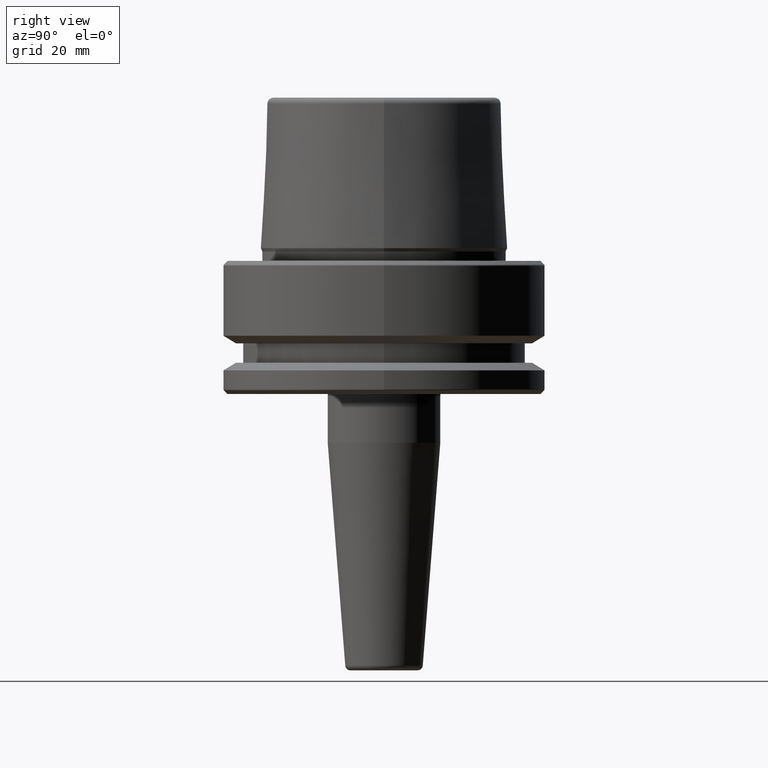
[diagram: clean part render]
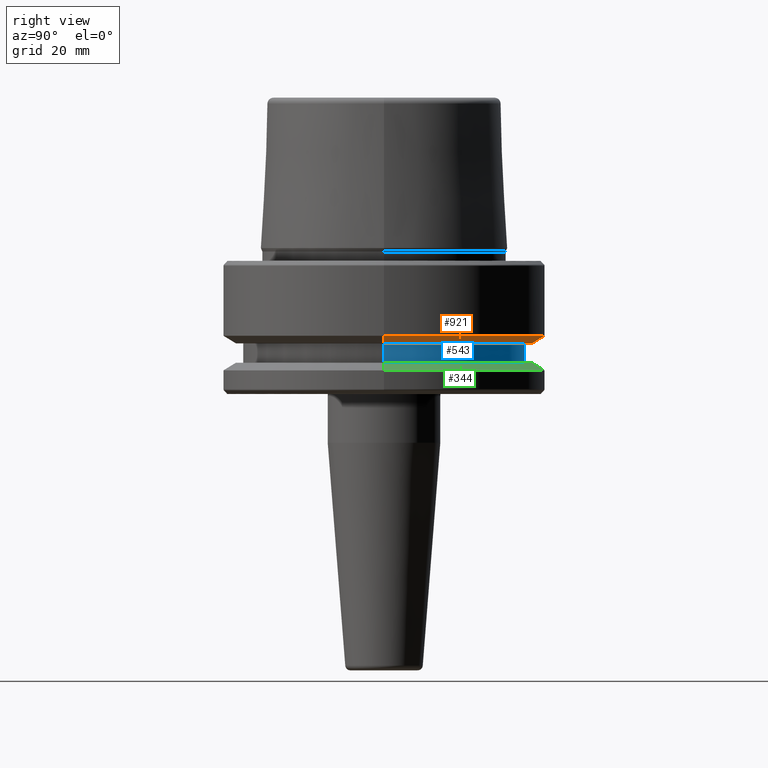
[diagram: same view with three faces highlighted in distinct colors, each labeled with its STEP entity id]
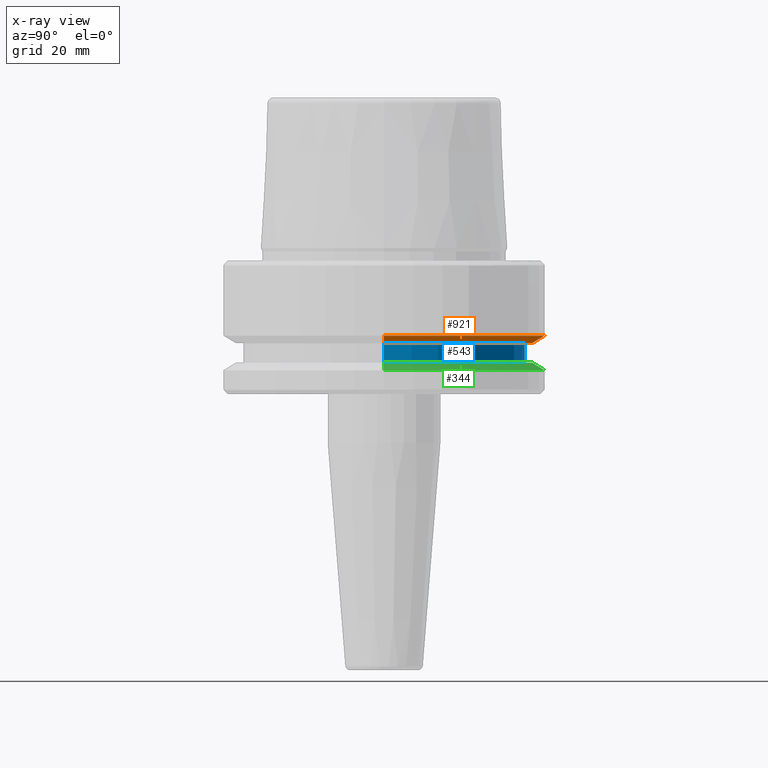
[diagram: x-ray of the same camera — body ghosted, the three highlighted faces saturated]
A machine part, right view with three faces highlighted in distinct colors.
The next image is the same camera in x-ray (body ghosted, the three faces saturated) — at least one of them is partly hidden behind the body in this view.
Their STEP definitions:

[orange] entity #921 — the highlighted conical surface has half-angle 60 deg.
#13 = AXIS2_PLACEMENT_3D ( 'NONE', #170, #843, #280 ) ;
#19 = CARTESIAN_POINT ( 'NONE',  ( 28.94089653438085100, 0.0000000000000000000, -16.10000000000001600 ) ) ;
#25 = CIRCLE ( 'NONE', #13, 28.94089653438085100 ) ;
#59 = CIRCLE ( 'NONE', #166, 31.50000000000000000 ) ;
#78 = CARTESIAN_POINT ( 'NONE',  ( 0.0000000000000000000, 0.0000000000000000000, -14.62250092524070100 ) ) ;
#96 = VERTEX_POINT ( 'NONE', #440 ) ;
#135 = EDGE_CURVE ( 'NONE', #96, #768, #1163, .T. ) ;
#166 = AXIS2_PLACEMENT_3D ( 'NONE', #78, #607, #642 ) ;
#170 = CARTESIAN_POINT ( 'NONE',  ( 0.0000000000000000000, 0.0000000000000000000, -16.10000000000001600 ) ) ;
#195 = CARTESIAN_POINT ( 'NONE',  ( 31.50000000000000000, 0.0000000000000000000, -14.62250092524070100 ) ) ;
#205 = VERTEX_POINT ( 'NONE', #195 ) ;
#229 = LINE ( 'NONE', #19, #1227 ) ;
#232 = DIRECTION ( 'NONE',  ( -0.8660254037844389300, 1.060575238724907300E-016, 0.4999999999999995000 ) ) ;
#280 = DIRECTION ( 'NONE',  ( 1.000000000000000000, 0.0000000000000000000, 0.0000000000000000000 ) ) ;
#282 = EDGE_CURVE ( 'NONE', #205, #768, #59, .T. ) ;
#382 = ORIENTED_EDGE ( 'NONE', *, *, #1152, .T. ) ;
#395 = CARTESIAN_POINT ( 'NONE',  ( -28.94089653438085100, 3.544237630528423800E-015, -16.10000000000001600 ) ) ;
#410 = ORIENTED_EDGE ( 'NONE', *, *, #135, .T. ) ;
#440 = CARTESIAN_POINT ( 'NONE',  ( -28.94089653438085100, 3.700937523921292900E-015, -16.10000000000001600 ) ) ;
#592 = DIRECTION ( 'NONE',  ( 0.8660254037844389300, 0.0000000000000000000, 0.4999999999999995000 ) ) ;
#607 = DIRECTION ( 'NONE',  ( -0.0000000000000000000, -0.0000000000000000000, 1.000000000000000000 ) ) ;
#642 = DIRECTION ( 'NONE',  ( 1.000000000000000000, 0.0000000000000000000, 0.0000000000000000000 ) ) ;
#661 = VERTEX_POINT ( 'NONE', #963 ) ;
#739 = ORIENTED_EDGE ( 'NONE', *, *, #757, .F. ) ;
#757 = EDGE_CURVE ( 'NONE', #661, #205, #229, .T. ) ;
#768 = VERTEX_POINT ( 'NONE', #982 ) ;
#793 = ORIENTED_EDGE ( 'NONE', *, *, #282, .F. ) ;
#803 = CARTESIAN_POINT ( 'NONE',  ( 0.0000000000000000000, 0.0000000000000000000, -16.10000000000001600 ) ) ;
#843 = DIRECTION ( 'NONE',  ( -0.0000000000000000000, -0.0000000000000000000, 1.000000000000000000 ) ) ;
#921 = ADVANCED_FACE ( 'NONE', ( #1106 ), #1052, .T. ) ;
#963 = CARTESIAN_POINT ( 'NONE',  ( 28.94089653438085100, 0.0000000000000000000, -16.10000000000001600 ) ) ;
#982 = CARTESIAN_POINT ( 'NONE',  ( -31.50000000000000000, 3.857637417314162700E-015, -14.62250092524070100 ) ) ;
#1006 = DIRECTION ( 'NONE',  ( 1.000000000000000000, 0.0000000000000000000, 0.0000000000000000000 ) ) ;
#1052 = CONICAL_SURFACE ( 'NONE', #1095, 28.94089653438085100, 1.047197551196598300 ) ;
#1095 = AXIS2_PLACEMENT_3D ( 'NONE', #803, #1099, #1006 ) ;
#1099 = DIRECTION ( 'NONE',  ( -0.0000000000000000000, -0.0000000000000000000, 1.000000000000000000 ) ) ;
#1100 = EDGE_LOOP ( 'NONE', ( #382, #410, #793, #739 ) ) ;
#1106 = FACE_OUTER_BOUND ( 'NONE', #1100, .T. ) ;
#1128 = VECTOR ( 'NONE', #232, 1000.000000000000000 ) ;
#1152 = EDGE_CURVE ( 'NONE', #661, #96, #25, .T. ) ;
#1163 = LINE ( 'NONE', #395, #1128 ) ;
#1227 = VECTOR ( 'NONE', #592, 1000.000000000000000 ) ;

[blue] entity #543 — the highlighted cylindrical surface (partial cylindrical patch) has radius 27.5 mm, axis along (-0, -0, 1).
#9 = EDGE_CURVE ( 'NONE', #277, #1186, #547, .T. ) ;
#14 = ORIENTED_EDGE ( 'NONE', *, *, #9, .F. ) ;
#53 = DIRECTION ( 'NONE',  ( 1.000000000000000000, 0.0000000000000000000, 0.0000000000000000000 ) ) ;
#84 = AXIS2_PLACEMENT_3D ( 'NONE', #524, #1103, #1165 ) ;
#97 = AXIS2_PLACEMENT_3D ( 'NONE', #1202, #625, #53 ) ;
#123 = CYLINDRICAL_SURFACE ( 'NONE', #84, 27.49999999999999600 ) ;
#188 = CARTESIAN_POINT ( 'NONE',  ( 0.0000000000000000000, 0.0000000000000000000, -19.90000000000001600 ) ) ;
#190 = CARTESIAN_POINT ( 'NONE',  ( -27.49999999999999600, 3.367778697655220900E-015, 78.96908074195309300 ) ) ;
#192 = VERTEX_POINT ( 'NONE', #210 ) ;
#210 = CARTESIAN_POINT ( 'NONE',  ( -27.49999999999999600, 3.367778697655220900E-015, -19.90000000000001600 ) ) ;
#256 = CARTESIAN_POINT ( 'NONE',  ( 27.49999999999999600, 0.0000000000000000000, -19.90000000000001600 ) ) ;
#277 = VERTEX_POINT ( 'NONE', #256 ) ;
#292 = DIRECTION ( 'NONE',  ( -0.0000000000000000000, -0.0000000000000000000, 1.000000000000000000 ) ) ;
#293 = DIRECTION ( 'NONE',  ( 1.000000000000000000, 0.0000000000000000000, 0.0000000000000000000 ) ) ;
#316 = CIRCLE ( 'NONE', #97, 27.49999999999999600 ) ;
#414 = VECTOR ( 'NONE', #999, 1000.000000000000000 ) ;
#488 = CARTESIAN_POINT ( 'NONE',  ( -27.49999999999999600, 3.367778697655220900E-015, -16.10000000000001600 ) ) ;
#524 = CARTESIAN_POINT ( 'NONE',  ( 0.0000000000000000000, 0.0000000000000000000, 78.96908074195309300 ) ) ;
#543 = ADVANCED_FACE ( 'NONE', ( #796 ), #123, .T. ) ;
#547 = LINE ( 'NONE', #1023, #414 ) ;
#563 = CARTESIAN_POINT ( 'NONE',  ( 27.49999999999999600, 0.0000000000000000000, -16.10000000000001600 ) ) ;
#625 = DIRECTION ( 'NONE',  ( -0.0000000000000000000, -0.0000000000000000000, 1.000000000000000000 ) ) ;
#659 = AXIS2_PLACEMENT_3D ( 'NONE', #188, #859, #293 ) ;
#674 = EDGE_CURVE ( 'NONE', #192, #704, #1012, .T. ) ;
#704 = VERTEX_POINT ( 'NONE', #488 ) ;
#796 = FACE_OUTER_BOUND ( 'NONE', #1205, .T. ) ;
#809 = ORIENTED_EDGE ( 'NONE', *, *, #949, .F. ) ;
#835 = ORIENTED_EDGE ( 'NONE', *, *, #674, .T. ) ;
#859 = DIRECTION ( 'NONE',  ( -0.0000000000000000000, -0.0000000000000000000, 1.000000000000000000 ) ) ;
#926 = CIRCLE ( 'NONE', #659, 27.49999999999999600 ) ;
#949 = EDGE_CURVE ( 'NONE', #1186, #704, #316, .T. ) ;
#999 = DIRECTION ( 'NONE',  ( -0.0000000000000000000, -0.0000000000000000000, 1.000000000000000000 ) ) ;
#1012 = LINE ( 'NONE', #190, #1234 ) ;
#1023 = CARTESIAN_POINT ( 'NONE',  ( 27.49999999999999600, 0.0000000000000000000, 78.96908074195309300 ) ) ;
#1103 = DIRECTION ( 'NONE',  ( -0.0000000000000000000, -0.0000000000000000000, 1.000000000000000000 ) ) ;
#1113 = ORIENTED_EDGE ( 'NONE', *, *, #1240, .T. ) ;
#1165 = DIRECTION ( 'NONE',  ( 1.000000000000000000, 0.0000000000000000000, 0.0000000000000000000 ) ) ;
#1186 = VERTEX_POINT ( 'NONE', #563 ) ;
#1202 = CARTESIAN_POINT ( 'NONE',  ( 0.0000000000000000000, 0.0000000000000000000, -16.10000000000001600 ) ) ;
#1205 = EDGE_LOOP ( 'NONE', ( #1113, #835, #809, #14 ) ) ;
#1234 = VECTOR ( 'NONE', #292, 1000.000000000000000 ) ;
#1240 = EDGE_CURVE ( 'NONE', #277, #192, #926, .T. ) ;

[green] entity #344 — the highlighted conical surface has half-angle 60 deg.
#18 = CARTESIAN_POINT ( 'NONE',  ( 0.0000000000000000000, 0.0000000000000000000, -21.37749907475931700 ) ) ;
#101 = VERTEX_POINT ( 'NONE', #1054 ) ;
#105 = DIRECTION ( 'NONE',  ( 0.0000000000000000000, 0.0000000000000000000, -1.000000000000000000 ) ) ;
#107 = VECTOR ( 'NONE', #1189, 1000.000000000000100 ) ;
#152 = VECTOR ( 'NONE', #880, 1000.000000000000100 ) ;
#251 = VERTEX_POINT ( 'NONE', #1119 ) ;
#295 = EDGE_CURVE ( 'NONE', #251, #498, #321, .T. ) ;
#299 = AXIS2_PLACEMENT_3D ( 'NONE', #533, #1208, #630 ) ;
#311 = AXIS2_PLACEMENT_3D ( 'NONE', #18, #322, #881 ) ;
#321 = CIRCLE ( 'NONE', #311, 31.50000000000000000 ) ;
#322 = DIRECTION ( 'NONE',  ( -0.0000000000000000000, -0.0000000000000000000, 1.000000000000000000 ) ) ;
#344 = ADVANCED_FACE ( 'NONE', ( #1029 ), #993, .T. ) ;
#390 = CARTESIAN_POINT ( 'NONE',  ( 28.94089653438085100, 3.700937523921292900E-015, -19.90000000000001600 ) ) ;
#401 = LINE ( 'NONE', #516, #107 ) ;
#484 = EDGE_CURVE ( 'NONE', #101, #498, #928, .T. ) ;
#497 = AXIS2_PLACEMENT_3D ( 'NONE', #831, #105, #994 ) ;
#498 = VERTEX_POINT ( 'NONE', #504 ) ;
#504 = CARTESIAN_POINT ( 'NONE',  ( -31.50000000000000000, 3.857637417314162700E-015, -21.37749907475931700 ) ) ;
#516 = CARTESIAN_POINT ( 'NONE',  ( 31.50000000000000000, 3.857637417314162700E-015, -21.37749907475931700 ) ) ;
#533 = CARTESIAN_POINT ( 'NONE',  ( 0.0000000000000000000, 0.0000000000000000000, -19.90000000000001600 ) ) ;
#561 = CIRCLE ( 'NONE', #299, 28.94089653438085100 ) ;
#627 = ORIENTED_EDGE ( 'NONE', *, *, #1000, .F. ) ;
#630 = DIRECTION ( 'NONE',  ( 1.000000000000000000, 0.0000000000000000000, 0.0000000000000000000 ) ) ;
#831 = CARTESIAN_POINT ( 'NONE',  ( 0.0000000000000000000, 0.0000000000000000000, -21.37749907475931700 ) ) ;
#880 = DIRECTION ( 'NONE',  ( -0.8660254037844410400, 0.0000000000000000000, -0.4999999999999958400 ) ) ;
#881 = DIRECTION ( 'NONE',  ( 1.000000000000000000, 0.0000000000000000000, 0.0000000000000000000 ) ) ;
#911 = EDGE_CURVE ( 'NONE', #1255, #251, #401, .T. ) ;
#928 = LINE ( 'NONE', #990, #152 ) ;
#933 = ORIENTED_EDGE ( 'NONE', *, *, #295, .T. ) ;
#962 = ORIENTED_EDGE ( 'NONE', *, *, #484, .F. ) ;
#980 = EDGE_LOOP ( 'NONE', ( #627, #1123, #933, #962 ) ) ;
#990 = CARTESIAN_POINT ( 'NONE',  ( -31.50000000000000000, 0.0000000000000000000, -21.37749907475931700 ) ) ;
#993 = CONICAL_SURFACE ( 'NONE', #497, 31.50000000000000000, 1.047197551196602500 ) ;
#994 = DIRECTION ( 'NONE',  ( -1.000000000000000000, 0.0000000000000000000, 0.0000000000000000000 ) ) ;
#1000 = EDGE_CURVE ( 'NONE', #1255, #101, #561, .T. ) ;
#1029 = FACE_OUTER_BOUND ( 'NONE', #980, .T. ) ;
#1054 = CARTESIAN_POINT ( 'NONE',  ( -28.94089653438085100, 0.0000000000000000000, -19.90000000000001600 ) ) ;
#1119 = CARTESIAN_POINT ( 'NONE',  ( 31.50000000000000000, 0.0000000000000000000, -21.37749907475931700 ) ) ;
#1123 = ORIENTED_EDGE ( 'NONE', *, *, #911, .T. ) ;
#1189 = DIRECTION ( 'NONE',  ( 0.8660254037844410400, 1.060575238724909700E-016, -0.4999999999999958400 ) ) ;
#1208 = DIRECTION ( 'NONE',  ( -0.0000000000000000000, -0.0000000000000000000, 1.000000000000000000 ) ) ;
#1255 = VERTEX_POINT ( 'NONE', #390 ) ;